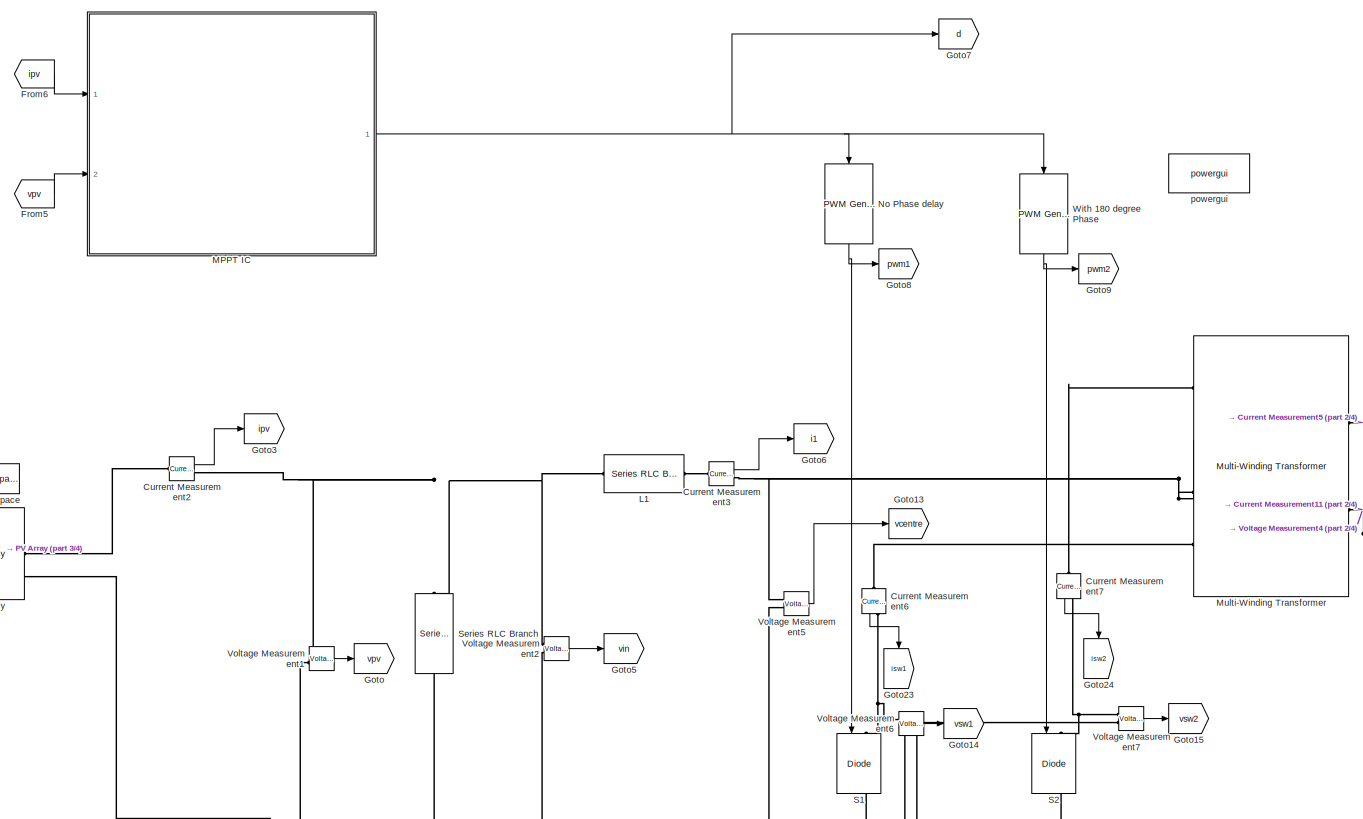
[diagram: root canvas - part 1/4, top center region]
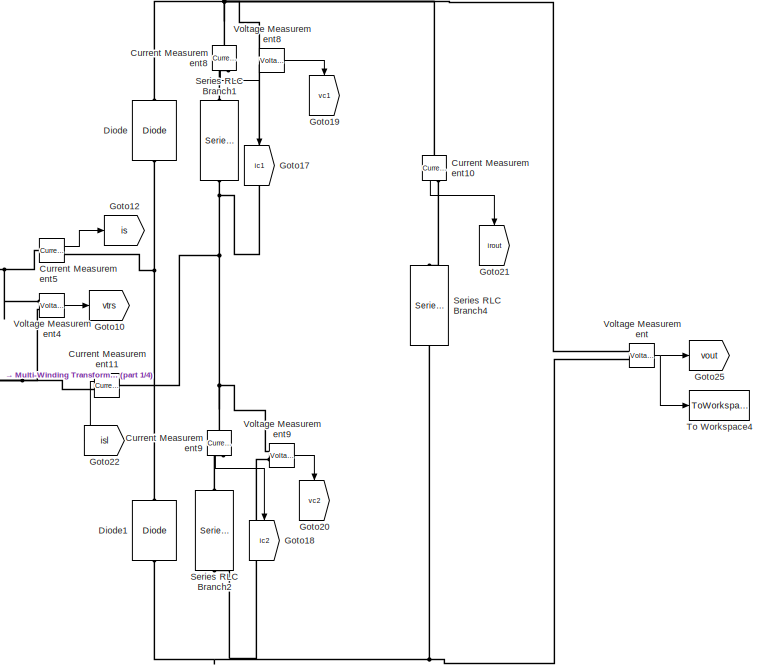
[diagram: root canvas - part 2/4, top right region]
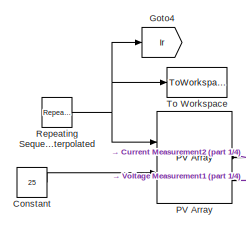
[diagram: root canvas - part 3/4, top left region]
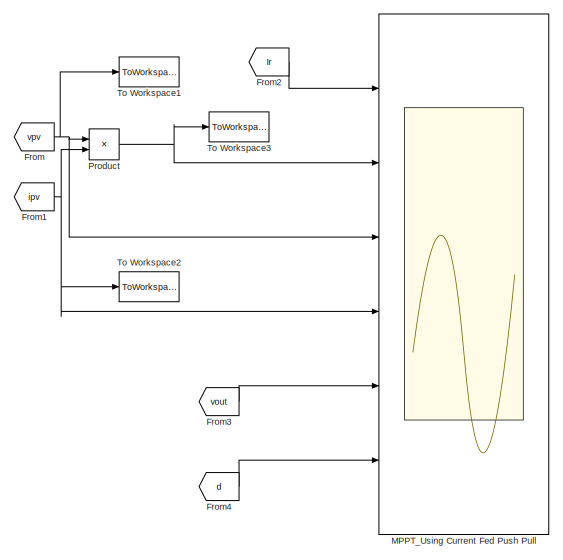
[diagram: root canvas - part 4/4, bottom center region]
MODEL slx_fce4dbe9e6d6
KIND model
CONFIG AbsTol = auto
CONFIG EnableMultiTasking = off
CONFIG FixedStep = Tss
CONFIG MaxStep = auto
CONFIG MinStep = auto
CONFIG RelTol = 1e-3
CONFIG SampleTimeConstraint = Unconstrained
CONFIG Solver = FixedStepAuto
CONFIG SolverName = FixedStepAuto
CONFIG StartTime = 0.0
CONFIG StopTime = 2.4
BLOCK [Constant] Constant
  Value = 25
BLOCK [Reference] Current Measurement10  REF=powerlib/Measurements/Current Measurement
  Ports = [0, 1, 0, 0, 0, 1, 1]
  SourceBlock = powerlib/Measurements/Current Measurement
  SourceProductBaseCode = PS
  SourceProductName = Simscape Electrical
  SourceType = Current Measurement
  UserDataPersistent = on
BLOCK [Reference] Current Measurement11  REF=powerlib/Measurements/Current Measurement
  Ports = [0, 1, 0, 0, 0, 1, 1]
  SourceBlock = powerlib/Measurements/Current Measurement
  SourceProductBaseCode = PS
  SourceProductName = Simscape Electrical
  SourceType = Current Measurement
  UserDataPersistent = on
BLOCK [Reference] Current Measurement2  REF=powerlib/Measurements/Current Measurement
  Ports = [0, 1, 0, 0, 0, 1, 1]
  SourceBlock = powerlib/Measurements/Current Measurement
  SourceProductBaseCode = PS
  SourceProductName = Simscape Electrical
  SourceType = Current Measurement
  UserDataPersistent = on
BLOCK [Reference] Current Measurement3  REF=powerlib/Measurements/Current Measurement
  Ports = [0, 1, 0, 0, 0, 1, 1]
  SourceBlock = powerlib/Measurements/Current Measurement
  SourceProductBaseCode = PS
  SourceProductName = Simscape Electrical
  SourceType = Current Measurement
  UserDataPersistent = on
BLOCK [Reference] Current Measurement5  REF=powerlib/Measurements/Current Measurement
  Ports = [0, 1, 0, 0, 0, 1, 1]
  SourceBlock = powerlib/Measurements/Current Measurement
  SourceProductBaseCode = PS
  SourceProductName = Simscape Electrical
  SourceType = Current Measurement
  UserDataPersistent = on
BLOCK [Reference] Current Measurement6  REF=powerlib/Measurements/Current Measurement
  Ports = [0, 1, 0, 0, 0, 1, 1]
  SourceBlock = powerlib/Measurements/Current Measurement
  SourceProductBaseCode = PS
  SourceProductName = Simscape Electrical
  SourceType = Current Measurement
  UserDataPersistent = on
BLOCK [Reference] Current Measurement7  REF=powerlib/Measurements/Current Measurement
  Ports = [0, 1, 0, 0, 0, 1, 1]
  SourceBlock = powerlib/Measurements/Current Measurement
  SourceProductBaseCode = PS
  SourceProductName = Simscape Electrical
  SourceType = Current Measurement
  UserDataPersistent = on
BLOCK [Reference] Current Measurement8  REF=powerlib/Measurements/Current Measurement
  Ports = [0, 1, 0, 0, 0, 1, 1]
  SourceBlock = powerlib/Measurements/Current Measurement
  SourceProductBaseCode = PS
  SourceProductName = Simscape Electrical
  SourceType = Current Measurement
  UserDataPersistent = on
BLOCK [Reference] Current Measurement9  REF=powerlib/Measurements/Current Measurement
  Ports = [0, 1, 0, 0, 0, 1, 1]
  SourceBlock = powerlib/Measurements/Current Measurement
  SourceProductBaseCode = PS
  SourceProductName = Simscape Electrical
  SourceType = Current Measurement
  UserDataPersistent = on
BLOCK [Reference] Diode  REF=powerlib/Power
Electronics/Diode
  Ports = [0, 0, 0, 0, 0, 1, 1]
  SourceBlock = powerlib/Power\nElectronics/Diode
  SourceProductBaseCode = PS
  SourceProductName = Simscape Electrical
  SourceType = Diode
BLOCK [Reference] Diode1  REF=powerlib/Power
Electronics/Diode
  Ports = [0, 0, 0, 0, 0, 1, 1]
  SourceBlock = powerlib/Power\nElectronics/Diode
  SourceProductBaseCode = PS
  SourceProductName = Simscape Electrical
  SourceType = Diode
BLOCK [From] From
  GotoTag = vpv
BLOCK [From] From1
  GotoTag = ipv
BLOCK [From] From2
  GotoTag = Ir
BLOCK [From] From3
  GotoTag = vout
BLOCK [From] From4
  GotoTag = d
BLOCK [From] From5
  GotoTag = vpv
BLOCK [From] From6
  GotoTag = ipv
BLOCK [Goto] Goto
  GotoTag = vpv
BLOCK [Goto] Goto10
  GotoTag = vtrs
BLOCK [Goto] Goto12
  GotoTag = is
BLOCK [Goto] Goto13
  GotoTag = vcentre
BLOCK [Goto] Goto14
  GotoTag = vsw1
BLOCK [Goto] Goto15
  GotoTag = vsw2
BLOCK [Goto] Goto17
  GotoTag = ic1
BLOCK [Goto] Goto18
  GotoTag = ic2
BLOCK [Goto] Goto19
  GotoTag = vc1
BLOCK [Goto] Goto20
  GotoTag = vc2
BLOCK [Goto] Goto21
  GotoTag = irout
BLOCK [Goto] Goto22
  GotoTag = isl
BLOCK [Goto] Goto23
  GotoTag = isw1
BLOCK [Goto] Goto24
  GotoTag = isw2
BLOCK [Goto] Goto25
  GotoTag = vout
BLOCK [Goto] Goto3
  GotoTag = ipv
BLOCK [Goto] Goto4
  GotoTag = Ir
BLOCK [Goto] Goto5
  GotoTag = vin
BLOCK [Goto] Goto6
  GotoTag = i1
BLOCK [Goto] Goto7
  GotoTag = d
BLOCK [Goto] Goto8
  GotoTag = pwm1
BLOCK [Goto] Goto9
  GotoTag = pwm2
BLOCK [Reference] L1  REF=powerlib/Elements/Series RLC Branch
  Ports = [0, 0, 0, 0, 0, 1, 1]
  SourceBlock = powerlib/Elements/Series RLC Branch
  SourceProductBaseCode = PS
  SourceProductName = Simscape Electrical
  SourceType = Series RLC Branch
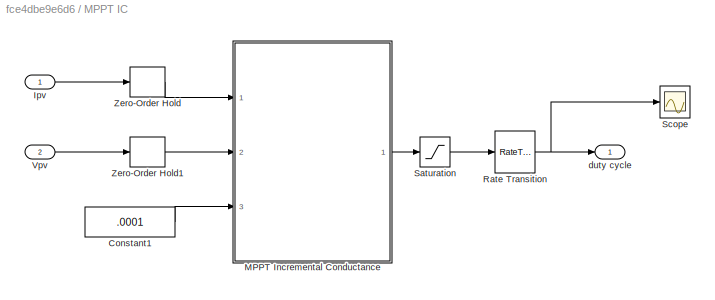
BLOCK [SubSystem] MPPT IC
  Ports = [2, 1]
  RequestExecContextInheritance = off
BLOCK [Constant] MPPT IC/Constant1
  Value = .0001
BLOCK [Inport] MPPT IC/Ipv
  IconDisplay = Port number
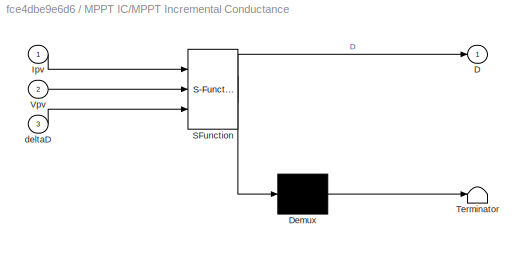
BLOCK [SubSystem] MPPT IC/MPPT Incremental Conductance
  BlockKeywords = __PRM__SERIALIZED__DATA__:Stateflow Chart,Stateflow Diagram
  ErrorFcn = Stateflow.Translate.translate
  PermitHierarchicalResolution = ExplicitOnly
  Ports = [3, 1]
  RequestExecContextInheritance = off
  SFBlockType = Chart
  TreatAsAtomicUnit = on
BLOCK [Demux] MPPT IC/MPPT Incremental Conductance/ Demux 
  Outputs = 1
  Ports = [1, 1]
BLOCK [S-Function] MPPT IC/MPPT Incremental Conductance/ SFunction 
  EnableBusSupport = on
  FunctionName = sf_sfun
  PortCounts = [3 2]
  Ports = [3, 2]
  SFcnIsStateOwnerBlock = off
  SFunctionDeploymentMode = off
  Tag = Stateflow S-Function MPPT_using_Current_fed_Push_pull 3
BLOCK [Terminator] MPPT IC/MPPT Incremental Conductance/ Terminator 
BLOCK [Outport] MPPT IC/MPPT Incremental Conductance/D
  IconDisplay = Port number
BLOCK [Inport] MPPT IC/MPPT Incremental Conductance/Ipv
  IconDisplay = Port number
BLOCK [Inport] MPPT IC/MPPT Incremental Conductance/Vpv
  IconDisplay = Port number
  Port = 2
BLOCK [Inport] MPPT IC/MPPT Incremental Conductance/deltaD
  IconDisplay = Port number
  Port = 3
BLOCK [RateTransition] MPPT IC/Rate Transition
BLOCK [Saturate] MPPT IC/Saturation
  InputPortMap = u0
  LowerLimit = .55
  Ports = [1, 1]
  UpperLimit = 0.95
BLOCK [Scope] MPPT IC/Scope
  Floating = off
  NumInputPorts = 1
  Ports = [1]
  ScopeSpecificationString = Simulink.scopes.TimeScopeBlockCfg('CurrentConfiguration', extmgr.ConfigurationSet(extmgr.Configuration('Core','General UI',true),extmgr.Configuration('Core','Source UI',true),extmgr.Configuration('Sources','WiredSimulink',true,'DataLoggingVariableName','ScopeData1'),extmgr.Configuration('Visuals','Time Domain',true,'SerializedDisplays',{struct('MinYLimReal','-0.11875','MaxYLimReal','1.06875','YLab...<+1775ch>
BLOCK [Inport] MPPT IC/Vpv
  IconDisplay = Port number
  Port = 2
BLOCK [ZeroOrderHold] MPPT IC/Zero-Order Hold
  SampleTime = 4*Tpwm
BLOCK [ZeroOrderHold] MPPT IC/Zero-Order Hold1
  SampleTime = 4*Tpwm
BLOCK [Outport] MPPT IC/duty cycle
  IconDisplay = Port number
BLOCK [Scope] MPPT_Using Current Fed Push Pull
  Floating = off
  NumInputPorts = 6
  Ports = [6]
  ScopeSpecificationString = Simulink.scopes.TimeScopeBlockCfg('CurrentConfiguration', extmgr.ConfigurationSet(extmgr.Configuration('Core','General UI',true),extmgr.Configuration('Core','Source UI',true),extmgr.Configuration('Sources','WiredSimulink',true,'DataLoggingVariableName','ScopeData1'),extmgr.Configuration('Visuals','Time Domain',true,'SerializedDisplays',{struct('MinYLimReal','437.5','MaxYLimReal','1062.5','YLabelRe...<+6303ch>
BLOCK [Reference] Multi-Winding Transformer  REF=powerlib/Elements/Multi-Winding
Transformer
  Ports = [0, 0, 0, 0, 0, 4, 2]
  SourceBlock = powerlib/Elements/Multi-Winding\nTransformer
  SourceProductBaseCode = PS
  SourceProductName = Simscape Electrical
  SourceType = Multi-Winding Transformer
BLOCK [Reference] No Phase delay  REF=eePwmGenerator/PWM Generator
  Ports = [1, 1]
  SourceBlock = eePwmGenerator/PWM Generator
  SourceProductBaseCode = PS
  SourceProductName = Simscape Electrical
  SourceType = PWM Generator
BLOCK [Reference] PV Array  REF=re_lib/Solar/PV Array
  Ports = [2, 1, 0, 0, 0, 0, 2]
  SourceBlock = re_lib/Solar/PV Array
  SourceProductBaseCode = PS
  SourceProductName = Simscape Electrical
  SourceType = PV array
BLOCK [Product] Product
  InputSameDT = off
  OutDataTypeStr = Inherit: Inherit via internal rule
  Ports = [2, 1]
  RndMeth = Floor
  SaturateOnIntegerOverflow = off
BLOCK [Reference] Repeating Sequence Interpolated  REF=simulink/Sources/Repeating
Sequence
Interpolated
  Ports = [0, 1]
  SourceBlock = simulink/Sources/Repeating\nSequence\nInterpolated
  SourceProductBaseCode = SL
  SourceProductName = Simulink
  SourceType = Repeating Sequence Interpolated
BLOCK [Reference] S1  REF=powerlib/Power
Electronics/IGBT//Diode
  Ports = [1, 1, 0, 0, 0, 1, 1]
  SourceBlock = powerlib/Power\nElectronics/IGBT//Diode
  SourceProductBaseCode = PS
  SourceProductName = Simscape Electrical
  SourceType = IGBT/Diode
BLOCK [Reference] S2  REF=powerlib/Power
Electronics/IGBT//Diode
  Ports = [1, 1, 0, 0, 0, 1, 1]
  SourceBlock = powerlib/Power\nElectronics/IGBT//Diode
  SourceProductBaseCode = PS
  SourceProductName = Simscape Electrical
  SourceType = IGBT/Diode
BLOCK [Reference] Series RLC Branch  REF=powerlib/Elements/Series RLC Branch
  Ports = [0, 0, 0, 0, 0, 1, 1]
  SourceBlock = powerlib/Elements/Series RLC Branch
  SourceProductBaseCode = PS
  SourceProductName = Simscape Electrical
  SourceType = Series RLC Branch
BLOCK [Reference] Series RLC Branch1  REF=powerlib/Elements/Series RLC Branch
  Ports = [0, 0, 0, 0, 0, 1, 1]
  SourceBlock = powerlib/Elements/Series RLC Branch
  SourceProductBaseCode = PS
  SourceProductName = Simscape Electrical
  SourceType = Series RLC Branch
BLOCK [Reference] Series RLC Branch2  REF=powerlib/Elements/Series RLC Branch
  Ports = [0, 0, 0, 0, 0, 1, 1]
  SourceBlock = powerlib/Elements/Series RLC Branch
  SourceProductBaseCode = PS
  SourceProductName = Simscape Electrical
  SourceType = Series RLC Branch
BLOCK [Reference] Series RLC Branch4  REF=powerlib/Elements/Series RLC Branch
  Ports = [0, 0, 0, 0, 0, 1, 1]
  SourceBlock = powerlib/Elements/Series RLC Branch
  SourceProductBaseCode = PS
  SourceProductName = Simscape Electrical
  SourceType = Series RLC Branch
BLOCK [ToWorkspace] To Workspace
  FixptAsFi = on
  MaxDataPoints = inf
  Ports = [1]
  SampleTime = Tss
  SaveFormat = Timeseries
  VariableName = Ir
BLOCK [ToWorkspace] To Workspace1
  FixptAsFi = on
  MaxDataPoints = inf
  Ports = [1]
  SampleTime = Tss
  SaveFormat = Timeseries
  VariableName = vpv_CFP
BLOCK [ToWorkspace] To Workspace2
  FixptAsFi = on
  MaxDataPoints = inf
  Ports = [1]
  SampleTime = Tss
  SaveFormat = Timeseries
  VariableName = ipv_CFP
BLOCK [ToWorkspace] To Workspace3
  FixptAsFi = on
  MaxDataPoints = inf
  Ports = [1]
  SampleTime = Tss
  SaveFormat = Timeseries
  VariableName = ppv_CFP1
BLOCK [ToWorkspace] To Workspace4
  FixptAsFi = on
  MaxDataPoints = inf
  Ports = [1]
  SampleTime = Tss
  SaveFormat = Timeseries
  VariableName = vout_CFP
BLOCK [Reference] Voltage Measurement  REF=powerlib/Measurements/Voltage Measurement
  Ports = [0, 1, 0, 0, 0, 2]
  SourceBlock = powerlib/Measurements/Voltage Measurement
  SourceProductBaseCode = PS
  SourceProductName = Simscape Electrical
  SourceType = Voltage Measurement
  UserDataPersistent = on
BLOCK [Reference] Voltage Measurement1  REF=powerlib/Measurements/Voltage Measurement
  Ports = [0, 1, 0, 0, 0, 2]
  SourceBlock = powerlib/Measurements/Voltage Measurement
  SourceProductBaseCode = PS
  SourceProductName = Simscape Electrical
  SourceType = Voltage Measurement
  UserDataPersistent = on
BLOCK [Reference] Voltage Measurement2  REF=powerlib/Measurements/Voltage Measurement
  Ports = [0, 1, 0, 0, 0, 2]
  SourceBlock = powerlib/Measurements/Voltage Measurement
  SourceProductBaseCode = PS
  SourceProductName = Simscape Electrical
  SourceType = Voltage Measurement
  UserDataPersistent = on
BLOCK [Reference] Voltage Measurement4  REF=powerlib/Measurements/Voltage Measurement
  Ports = [0, 1, 0, 0, 0, 2]
  SourceBlock = powerlib/Measurements/Voltage Measurement
  SourceProductBaseCode = PS
  SourceProductName = Simscape Electrical
  SourceType = Voltage Measurement
  UserDataPersistent = on
BLOCK [Reference] Voltage Measurement5  REF=powerlib/Measurements/Voltage Measurement
  Ports = [0, 1, 0, 0, 0, 2]
  SourceBlock = powerlib/Measurements/Voltage Measurement
  SourceProductBaseCode = PS
  SourceProductName = Simscape Electrical
  SourceType = Voltage Measurement
  UserDataPersistent = on
BLOCK [Reference] Voltage Measurement6  REF=powerlib/Measurements/Voltage Measurement
  Ports = [0, 1, 0, 0, 0, 2]
  SourceBlock = powerlib/Measurements/Voltage Measurement
  SourceProductBaseCode = PS
  SourceProductName = Simscape Electrical
  SourceType = Voltage Measurement
  UserDataPersistent = on
BLOCK [Reference] Voltage Measurement7  REF=powerlib/Measurements/Voltage Measurement
  Ports = [0, 1, 0, 0, 0, 2]
  SourceBlock = powerlib/Measurements/Voltage Measurement
  SourceProductBaseCode = PS
  SourceProductName = Simscape Electrical
  SourceType = Voltage Measurement
  UserDataPersistent = on
BLOCK [Reference] Voltage Measurement8  REF=powerlib/Measurements/Voltage Measurement
  Ports = [0, 1, 0, 0, 0, 2]
  SourceBlock = powerlib/Measurements/Voltage Measurement
  SourceProductBaseCode = PS
  SourceProductName = Simscape Electrical
  SourceType = Voltage Measurement
  UserDataPersistent = on
BLOCK [Reference] Voltage Measurement9  REF=powerlib/Measurements/Voltage Measurement
  Ports = [0, 1, 0, 0, 0, 2]
  SourceBlock = powerlib/Measurements/Voltage Measurement
  SourceProductBaseCode = PS
  SourceProductName = Simscape Electrical
  SourceType = Voltage Measurement
  UserDataPersistent = on
BLOCK [Reference] With 180 degree Phase  REF=eePwmGenerator/PWM Generator
  Ports = [1, 1]
  SourceBlock = eePwmGenerator/PWM Generator
  SourceProductBaseCode = PS
  SourceProductName = Simscape Electrical
  SourceType = PWM Generator
BLOCK [Reference] powergui  REF=powerlib/powergui
  Ports = []
  Priority = 1
  SourceBlock = powerlib/powergui
  SourceProductBaseCode = PS
  SourceProductName = Simscape Electrical
  SourceType = PSB option menu block
LINE Constant:1 -> PV Array:2
LINE Current Measurement10:1 -> Goto21:1
LINE Current Measurement11:1 -> Goto22:1
LINE Current Measurement2:1 -> Goto3:1
LINE Current Measurement3:1 -> Goto6:1
LINE Current Measurement5:1 -> Goto12:1
LINE Current Measurement6:1 -> Goto23:1
LINE Current Measurement7:1 -> Goto24:1
LINE Current Measurement8:1 -> Goto17:1
LINE Current Measurement9:1 -> Goto18:1
NET From1:1 -> MPPT_Using Current Fed Push Pull:4, Product:2, To Workspace2:1
LINE From2:1 -> MPPT_Using Current Fed Push Pull:1
LINE From3:1 -> MPPT_Using Current Fed Push Pull:5
LINE From4:1 -> MPPT_Using Current Fed Push Pull:6
LINE From5:1 -> MPPT IC:2
LINE From6:1 -> MPPT IC:1
NET From:1 -> MPPT_Using Current Fed Push Pull:3, Product:1, To Workspace1:1
LINE MPPT IC/Constant1:1 -> MPPT IC/MPPT Incremental Conductance:3
LINE MPPT IC/Ipv:1 -> MPPT IC/Zero-Order Hold:1
LINE MPPT IC/MPPT Incremental Conductance:1 -> MPPT IC/Saturation:1
NET MPPT IC/Rate Transition:1 -> MPPT IC/Scope:1, MPPT IC/duty cycle:1
LINE MPPT IC/Saturation:1 -> MPPT IC/Rate Transition:1
LINE MPPT IC/Vpv:1 -> MPPT IC/Zero-Order Hold1:1
LINE MPPT IC/Zero-Order Hold1:1 -> MPPT IC/MPPT Incremental Conductance:2
LINE MPPT IC/Zero-Order Hold:1 -> MPPT IC/MPPT Incremental Conductance:1
NET MPPT IC:1 -> Goto7:1, No Phase delay:1, With 180 degree Phase:1
NET No Phase delay:1 -> Goto8:1, S1:1
NET Product:1 -> MPPT_Using Current Fed Push Pull:2, To Workspace3:1
NET Repeating Sequence Interpolated:1 -> Goto4:1, PV Array:1, To Workspace:1
LINE Voltage Measurement1:1 -> Goto:1
LINE Voltage Measurement2:1 -> Goto5:1
LINE Voltage Measurement4:1 -> Goto10:1
LINE Voltage Measurement5:1 -> Goto13:1
LINE Voltage Measurement6:1 -> Goto14:1
LINE Voltage Measurement7:1 -> Goto15:1
LINE Voltage Measurement8:1 -> Goto19:1
LINE Voltage Measurement9:1 -> Goto20:1
NET Voltage Measurement:1 -> Goto25:1, To Workspace4:1
NET With 180 degree Phase:1 -> Goto9:1, S2:1
PNET net1: Current Measurement10:LConn1 -- Current Measurement8:LConn1 -- Diode:RConn1 -- Voltage Measurement8:LConn1 -- Voltage Measurement:LConn1
PLINE Current Measurement10:RConn1 -- Series RLC Branch4:LConn1
PNET net2: Current Measurement11:LConn1 -- Current Measurement9:LConn1 -- Series RLC Branch1:RConn1 -- Voltage Measurement8:LConn2 -- Voltage Measurement9:LConn1
PNET net3: Current Measurement11:RConn1 -- Multi-Winding Transformer:RConn2 -- Voltage Measurement4:LConn2
PLINE Current Measurement2:LConn1 -- PV Array:RConn1
PNET net4: Current Measurement2:RConn1 -- L1:LConn1 -- Series RLC Branch:LConn1 -- Voltage Measurement1:LConn1 -- Voltage Measurement2:LConn1
PLINE Current Measurement3:LConn1 -- L1:RConn1
PNET net5: Current Measurement3:RConn1 -- Multi-Winding Transformer:LConn2 -- Multi-Winding Transformer:LConn3 -- Voltage Measurement5:LConn1
PNET net6: Current Measurement5:LConn1 -- Multi-Winding Transformer:RConn1 -- Voltage Measurement4:LConn1
PNET net7: Current Measurement5:RConn1 -- Diode1:RConn1 -- Diode:LConn1
PLINE Current Measurement6:LConn1 -- Multi-Winding Transformer:LConn4
PNET net8: Current Measurement6:RConn1 -- S1:LConn1 -- Voltage Measurement6:LConn1
PLINE Current Measurement7:LConn1 -- Multi-Winding Transformer:LConn1
PNET net9: Current Measurement7:RConn1 -- S2:LConn1 -- Voltage Measurement7:LConn1
PLINE Current Measurement8:RConn1 -- Series RLC Branch1:LConn1
PLINE Current Measurement9:RConn1 -- Series RLC Branch2:LConn1
PNET net10: Diode1:LConn1 -- Series RLC Branch2:RConn1 -- Series RLC Branch4:RConn1 -- Voltage Measurement9:LConn2 -- Voltage Measurement:LConn2
PNET net11: PV Array:RConn2 -- S1:RConn1 -- S2:RConn1 -- Series RLC Branch:RConn1 -- Voltage Measurement1:LConn2 -- Voltage Measurement2:LConn2 -- Voltage Measurement5:LConn2 -- Voltage Measurement6:LConn2 -- Voltage Measurement7:LConn2
note: NET lines group one-source signal fan-out (src -> all destinations, sorted); 1:1 wires keep LINE; PNET lines group multi-terminal physical nets as a canonical sorted terminal list (undirected conserving connections); 2-terminal nets keep the pairwise PLINE form
CHART MPPT IC/MPPT Incremental Conductance states=7 transitions=18
  STATE_LABEL 'SampleAndCalculate\nentry:\ndV=Vpv-Vpre;\ndI=Ipv-Ipre;\n'
  STATE_LABEL 'Init\nentry:\nVpre=0;\nIpre=0;\nD=0.9;\n'
  STATE_LABEL 'Decrease_Voltage\nentry:\nD=D+deltaD'
  STATE_LABEL 'Increase_Voltage\nentry:\nD=D-deltaD;'
  STATE_LABEL 'Increase_Voltage1\nentry:\nD=D-deltaD;'
  STATE_LABEL 'Decrease_Voltage1\nentry:\nD=D+deltaD;'
  STATE_LABEL 'RETURN\nentry:\nVpre=Vpv;\nIpre=Ipv;\n'
